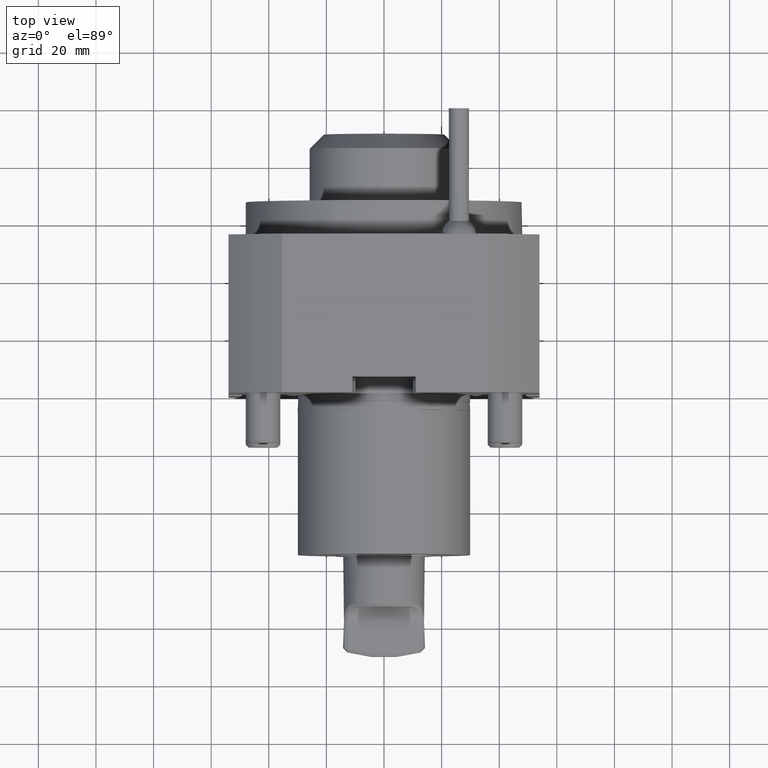
[diagram: clean part render]
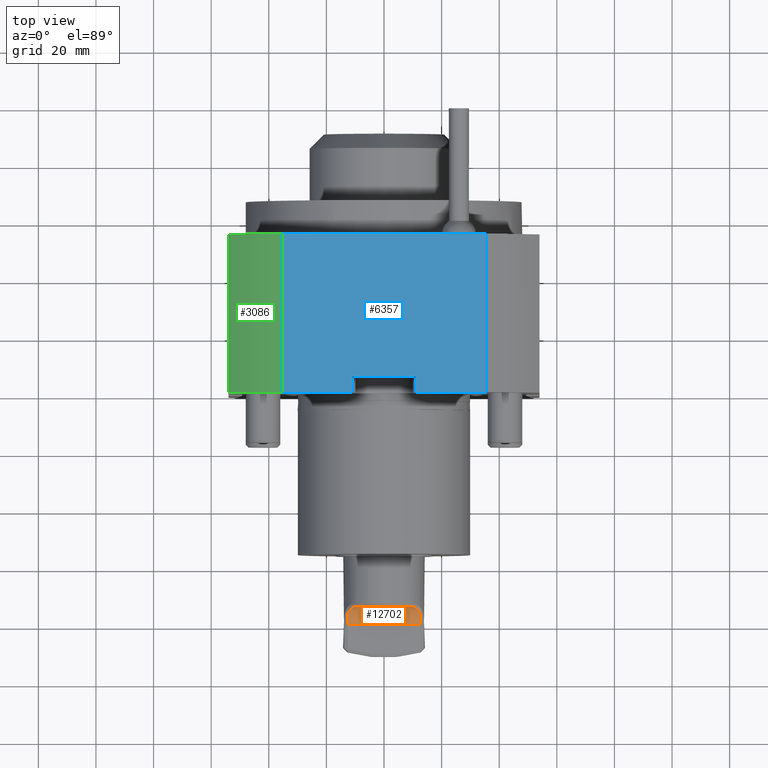
[diagram: same view with three faces highlighted in distinct colors, each labeled with its STEP entity id]
A machine part, top view with three faces highlighted in distinct colors.
Their STEP definitions:

[orange] entity #12702 — the highlighted cylindrical surface (edge-blend (fillet) strip) has radius 6 mm, axis along (1, -0, 0).
#1038 = EDGE_LOOP ( 'NONE', ( #12382, #10063, #18096, #12449, #9887, #19248 ) ) ;
#1158 = CARTESIAN_POINT ( 'NONE',  ( -12.55193161386064915, -77.34245224775885674, 4.224518817551202510 ) ) ;
#1326 = DIRECTION ( 'NONE',  ( 1.000000000000000000, -1.223592022496380568E-16, 3.729655473350134760E-16 ) ) ;
#1590 = CARTESIAN_POINT ( 'NONE',  ( 10.98713537160386622, -73.86943922113913175, 7.790744454398466523 ) ) ;
#1747 = CARTESIAN_POINT ( 'NONE',  ( -15.49388420157445445, -73.50000000000048317, 9.929999999999997939 ) ) ;
#1922 = EDGE_CURVE ( 'NONE', #17752, #14263, #19484, .T. ) ;
#2253 = CARTESIAN_POINT ( 'NONE',  ( -11.15148804464083021, -73.98240642639130726, 7.558386721260468732 ) ) ;
#2442 = CARTESIAN_POINT ( 'NONE',  ( -10.58040448906658249, -73.73150604598997404, 8.261201405944587961 ) ) ;
#2463 =( BOUNDED_CURVE ( )  B_SPLINE_CURVE ( 3, ( #7822, #2968, #19403, #15997 ),
 .UNSPECIFIED., .F., .T. ) 
 B_SPLINE_CURVE_WITH_KNOTS ( ( 4, 4 ),
 ( 2.598921649952495194, 3.141592653589793116 ),
 .UNSPECIFIED. ) 
 CURVE ( )  GEOMETRIC_REPRESENTATION_ITEM ( )  RATIONAL_B_SPLINE_CURVE ( ( 1.000000000000000000, 0.9756092111193656047, 0.9756092111193656047, 1.000000000000000000 ) ) 
 REPRESENTATION_ITEM ( '' )  );
#2749 = CARTESIAN_POINT ( 'NONE',  ( -12.50000000000001776, -78.40112428979475112, 3.929999999999997051 ) ) ;
#2968 = CARTESIAN_POINT ( 'NONE',  ( 12.55193161387448697, -77.34245224747444070, 4.224518817629822287 ) ) ;
#3187 = CARTESIAN_POINT ( 'NONE',  ( 12.65199488382238791, -76.40144941220842156, 4.792005813581045714 ) ) ;
#3392 = VECTOR ( 'NONE', #6174, 1000.000000000000000 ) ;
#3912 = CARTESIAN_POINT ( 'NONE',  ( -12.59399533819293104, -76.13644556352026882, 4.951820675888688683 ) ) ;
#4388 = CYLINDRICAL_SURFACE ( 'NONE', #6599, 6.000000000000004441 ) ;
#5365 = CARTESIAN_POINT ( 'NONE',  ( -11.63935332783834298, -74.34212888188564250, 6.851914114397522404 ) ) ;
#5474 = CARTESIAN_POINT ( 'NONE',  ( -11.91967944061357976, -74.65088729436402559, 6.385376866539509422 ) ) ;
#5675 = CARTESIAN_POINT ( 'NONE',  ( -12.65199488337118083, -76.40144941275414681, 4.792005813717241658 ) ) ;
#5688 = CARTESIAN_POINT ( 'NONE',  ( -12.04549493963296314, -74.82676599026582664, 6.155742851531686100 ) ) ;
#5957 = EDGE_CURVE ( 'NONE', #20341, #7899, #14166, .T. ) ;
#6169 = DIRECTION ( 'NONE',  ( 2.891205793294676354E-16, 0.000000000000000000, -1.000000000000000000 ) ) ;
#6174 = DIRECTION ( 'NONE',  ( 1.000000000000000000, -1.223592022496380568E-16, 3.729655473350134760E-16 ) ) ;
#6599 = AXIS2_PLACEMENT_3D ( 'NONE', #17435, #1326, #6169 ) ;
#6641 = CARTESIAN_POINT ( 'NONE',  ( 12.53634790550868772, -75.87305054434754936, 5.110665307041871053 ) ) ;
#7087 = CARTESIAN_POINT ( 'NONE',  ( -8.772548090492286121, -73.50000000000048317, 9.930000000000001492 ) ) ;
#7268 = CARTESIAN_POINT ( 'NONE',  ( -12.50000000000001776, -79.50000000000048317, 3.929999999999997051 ) ) ;
#7822 = CARTESIAN_POINT ( 'NONE',  ( 12.65199488382238791, -76.40144941220842156, 4.792005813581045714 ) ) ;
#7899 = VERTEX_POINT ( 'NONE', #13770 ) ;
#7980 = EDGE_CURVE ( 'NONE', #17752, #12398, #12887, .T. ) ;
#8037 = CARTESIAN_POINT ( 'NONE',  ( 9.739148830036603144, -73.53493346669228004, 9.140714371243516823 ) ) ;
#8575 = CARTESIAN_POINT ( 'NONE',  ( -9.735458662332455049, -73.53498407962835870, 9.143631829616941431 ) ) ;
#8992 = VECTOR ( 'NONE', #20592, 1000.000000000000000 ) ;
#9887 = ORIENTED_EDGE ( 'NONE', *, *, #14788, .T. ) ;
#10063 = ORIENTED_EDGE ( 'NONE', *, *, #19110, .T. ) ;
#10120 = EDGE_CURVE ( 'NONE', #14699, #7899, #2463, .T. ) ;
#10166 = CARTESIAN_POINT ( 'NONE',  ( -9.271514884620454922, -73.50000000000048317, 9.552170462726536471 ) ) ;
#11532 = CARTESIAN_POINT ( 'NONE',  ( 10.60242032487349917, -73.72092542021852069, 8.254503789358768273 ) ) ;
#11763 = CARTESIAN_POINT ( 'NONE',  ( -12.26477245822139572, -75.21262393665999468, 5.722561393911957950 ) ) ;
#11773 = CARTESIAN_POINT ( 'NONE',  ( 8.772548090492259476, -73.50000000000048317, 9.930000000000012150 ) ) ;
#12092 = CARTESIAN_POINT ( 'NONE',  ( -12.65199488337118083, -76.40144941275414681, 4.792005813717241658 ) ) ;
#12382 = ORIENTED_EDGE ( 'NONE', *, *, #10120, .F. ) ;
#12398 = VERTEX_POINT ( 'NONE', #11773 ) ;
#12449 = ORIENTED_EDGE ( 'NONE', *, *, #1922, .T. ) ;
#12702 = ADVANCED_FACE ( 'Defeature completata1_118', ( #19022 ), #4388, .F. ) ;
#12887 = LINE ( 'NONE', #1747, #3392 ) ;
#12935 = CARTESIAN_POINT ( 'NONE',  ( 11.93592935916167797, -74.63267350381387644, 6.372723432659078924 ) ) ;
#13582 = CARTESIAN_POINT ( 'NONE',  ( -8.772548090492286121, -73.50000000000048317, 9.930000000000001492 ) ) ;
#13770 = CARTESIAN_POINT ( 'NONE',  ( 12.49999999999999289, -79.50000000000048317, 3.930000000000008153 ) ) ;
#14166 = LINE ( 'NONE', #17197, #8992 ) ;
#14263 = VERTEX_POINT ( 'NONE', #16391 ) ;
#14699 = VERTEX_POINT ( 'NONE', #18796 ) ;
#14788 = EDGE_CURVE ( 'NONE', #14263, #20341, #16000, .T. ) ;
#15379 = CARTESIAN_POINT ( 'NONE',  ( -10.96966452293990990, -73.88732766394491591, 7.794977636404347265 ) ) ;
#15667 = CARTESIAN_POINT ( 'NONE',  ( -12.50000000000001776, -79.50000000000048317, 3.929999999999997051 ) ) ;
#15997 = CARTESIAN_POINT ( 'NONE',  ( 12.49999999999999289, -79.50000000000048317, 3.930000000000008153 ) ) ;
#16000 =( BOUNDED_CURVE ( )  B_SPLINE_CURVE ( 3, ( #5675, #1158, #2749, #7268 ),
 .UNSPECIFIED., .F., .T. ) 
 B_SPLINE_CURVE_WITH_KNOTS ( ( 4, 4 ),
 ( 2.598921650024906604, 3.141592653589793116 ),
 .UNSPECIFIED. ) 
 CURVE ( )  GEOMETRIC_REPRESENTATION_ITEM ( )  RATIONAL_B_SPLINE_CURVE ( ( 1.000000000000000000, 0.9756092111258347632, 0.9756092111258347632, 1.000000000000000000 ) ) 
 REPRESENTATION_ITEM ( '' )  );
#16103 = CARTESIAN_POINT ( 'NONE',  ( 12.37906444607998679, -75.41504722588582865, 5.496238094993653789 ) ) ;
#16198 = CARTESIAN_POINT ( 'NONE',  ( 11.66170388721455176, -74.33040822808776227, 6.838891802991809321 ) ) ;
#16391 = CARTESIAN_POINT ( 'NONE',  ( -12.65199488337118083, -76.40144941275414681, 4.792005813717241658 ) ) ;
#16419 = CARTESIAN_POINT ( 'NONE',  ( 8.772548090492259476, -73.50000000000048317, 9.930000000000012150 ) ) ;
#16635 = CARTESIAN_POINT ( 'NONE',  ( -12.35955849858286015, -75.42391582076386669, 5.516852063641718651 ) ) ;
#16843 = CARTESIAN_POINT ( 'NONE',  ( -10.37609877321256668, -73.67175370399083079, 8.487262126902198389 ) ) ;
#16945 = CARTESIAN_POINT ( 'NONE',  ( -12.52416858226861684, -75.88535475117581086, 5.131596445737891976 ) ) ;
#17197 = CARTESIAN_POINT ( 'NONE',  ( -15.49388420157445267, -79.50000000000048317, 3.929999999999997051 ) ) ;
#17435 = CARTESIAN_POINT ( 'NONE',  ( -15.49388420157445623, -79.50000000000048317, 9.929999999999997939 ) ) ;
#17752 = VERTEX_POINT ( 'NONE', #7087 ) ;
#18096 = ORIENTED_EDGE ( 'NONE', *, *, #7980, .F. ) ;
#18796 = CARTESIAN_POINT ( 'NONE',  ( 12.65199488382238791, -76.40144941220842156, 4.792005813581045714 ) ) ;
#19022 = FACE_OUTER_BOUND ( 'NONE', #1038, .T. ) ;
#19110 = EDGE_CURVE ( 'NONE', #14699, #12398, #20664, .T. ) ;
#19248 = ORIENTED_EDGE ( 'NONE', *, *, #5957, .T. ) ;
#19395 = CARTESIAN_POINT ( 'NONE',  ( 9.271373646339185370, -73.50000000000049738, 9.552277411716170619 ) ) ;
#19403 = CARTESIAN_POINT ( 'NONE',  ( 12.49999999999999467, -78.40112428964445712, 3.930000000000003713 ) ) ;
#19484 = B_SPLINE_CURVE_WITH_KNOTS ( 'NONE', 3,
 ( #13582, #10166, #8575, #16843, #2442, #15379, #2253, #19920, #5365, #5474, #5688, #11763, #16635, #16945, #3912, #12092 ),
 .UNSPECIFIED., .F., .F.,
 ( 4, 2, 2, 2, 2, 2, 2, 4 ),
 ( 0.000000000000000000, 0.001852649545640797351, 0.002778974318461191039, 0.003705299091281584727, 0.004631623864101977982, 0.005557948636922372537, 0.006484273409742765358, 0.007410598182563159914 ),
 .UNSPECIFIED. ) ;
#19920 = CARTESIAN_POINT ( 'NONE',  ( -11.48595134253924854, -74.20967289027801428, 7.087320373386654104 ) ) ;
#20341 = VERTEX_POINT ( 'NONE', #15667 ) ;
#20592 = DIRECTION ( 'NONE',  ( 1.000000000000000000, -1.223592022496380568E-16, 3.729655473350134760E-16 ) ) ;
#20664 = B_SPLINE_CURVE_WITH_KNOTS ( 'NONE', 3,
 ( #3187, #6641, #16103, #12935, #16198, #1590, #11532, #8037, #19395, #16419 ),
 .UNSPECIFIED., .F., .F.,
 ( 4, 2, 2, 2, 4 ),
 ( 2.800139636520998741E-13, 0.001856752242151924305, 0.003713504484023834751, 0.005570256725895745414, 0.007427008967767655644 ),
 .UNSPECIFIED. ) ;

[blue] entity #6357 — the highlighted planar face has unit normal (-0, 0, -1).
#152 = CARTESIAN_POINT ( 'NONE',  ( 11.00000000005704770, 5.499999999999998224, 64.99999999999997158 ) ) ;
#234 = AXIS2_PLACEMENT_3D ( 'NONE', #19374, #3373, #13130 ) ;
#545 = LINE ( 'NONE', #18305, #11173 ) ;
#854 = EDGE_CURVE ( 'NONE', #12247, #2597, #7489, .T. ) ;
#878 = VECTOR ( 'NONE', #9329, 1000.000000000000000 ) ;
#1133 = CARTESIAN_POINT ( 'NONE',  ( -35.36947836765479281, 6.938893903907228378E-15, 64.99999999999997158 ) ) ;
#1148 = EDGE_CURVE ( 'NONE', #7928, #18301, #12522, .T. ) ;
#1225 = EDGE_LOOP ( 'NONE', ( #17869, #9569, #9801, #12214, #14738, #2050, #4871, #20621 ) ) ;
#1775 = FACE_OUTER_BOUND ( 'NONE', #1225, .T. ) ;
#1971 = CARTESIAN_POINT ( 'NONE',  ( -35.36947836765479281, 54.99999999999998579, 64.99999999999997158 ) ) ;
#2050 = ORIENTED_EDGE ( 'NONE', *, *, #854, .T. ) ;
#2094 = LINE ( 'NONE', #13535, #20703 ) ;
#2384 = VERTEX_POINT ( 'NONE', #5340 ) ;
#2597 = VERTEX_POINT ( 'NONE', #1971 ) ;
#2774 = LINE ( 'NONE', #19291, #878 ) ;
#3159 = VECTOR ( 'NONE', #16067, 1000.000000000000000 ) ;
#3373 = DIRECTION ( 'NONE',  ( -0.000000000000000000, 0.000000000000000000, -1.000000000000000000 ) ) ;
#3465 = EDGE_CURVE ( 'NONE', #7928, #2597, #11894, .T. ) ;
#3705 = EDGE_CURVE ( 'NONE', #12247, #2384, #7149, .T. ) ;
#4045 = LINE ( 'NONE', #16983, #20500 ) ;
#4107 = CARTESIAN_POINT ( 'NONE',  ( 44.00000000000000000, 54.99999999999998579, 64.99999999999997158 ) ) ;
#4721 = CARTESIAN_POINT ( 'NONE',  ( -11.00000000000123812, 5.499999999999998224, 64.99999999999997158 ) ) ;
#4871 = ORIENTED_EDGE ( 'NONE', *, *, #3465, .F. ) ;
#5340 = CARTESIAN_POINT ( 'NONE',  ( 35.36947836765479281, -2.081668171172168513E-14, 64.99999999999997158 ) ) ;
#5923 = EDGE_CURVE ( 'NONE', #12862, #2384, #4045, .T. ) ;
#6357 = ADVANCED_FACE ( 'Defeature completata1_2', ( #1775 ), #17773, .F. ) ;
#6775 = DIRECTION ( 'NONE',  ( 1.224646799147353207E-16, 1.000000000000000000, 0.000000000000000000 ) ) ;
#7149 = LINE ( 'NONE', #20117, #3159 ) ;
#7162 = VECTOR ( 'NONE', #6775, 1000.000000000000000 ) ;
#7280 = DIRECTION ( 'NONE',  ( -1.000000000000000000, 1.224646799147353207E-16, 0.000000000000000000 ) ) ;
#7321 = CARTESIAN_POINT ( 'NONE',  ( 11.00000000005704770, 0.000000000000000000, 64.99999999999997158 ) ) ;
#7489 = LINE ( 'NONE', #4107, #14675 ) ;
#7928 = VERTEX_POINT ( 'NONE', #1133 ) ;
#8759 = DIRECTION ( 'NONE',  ( 1.224646799147353207E-16, 1.000000000000000000, 0.000000000000000000 ) ) ;
#9329 = DIRECTION ( 'NONE',  ( -1.000000000000000000, 1.224646799147353207E-16, 0.000000000000000000 ) ) ;
#9569 = ORIENTED_EDGE ( 'NONE', *, *, #11865, .F. ) ;
#9801 = ORIENTED_EDGE ( 'NONE', *, *, #20212, .F. ) ;
#10837 = CARTESIAN_POINT ( 'NONE',  ( 35.36947836765479991, 54.99999999999998579, 64.99999999999997158 ) ) ;
#11173 = VECTOR ( 'NONE', #8759, 1000.000000000000000 ) ;
#11354 = CARTESIAN_POINT ( 'NONE',  ( -11.00000000000123812, 0.000000000000000000, 64.99999999999997158 ) ) ;
#11711 = VERTEX_POINT ( 'NONE', #152 ) ;
#11817 = DIRECTION ( 'NONE',  ( 1.224646799147353207E-16, 1.000000000000000000, 0.000000000000000000 ) ) ;
#11865 = EDGE_CURVE ( 'NONE', #11711, #15802, #2774, .T. ) ;
#11894 = LINE ( 'NONE', #18357, #7162 ) ;
#12214 = ORIENTED_EDGE ( 'NONE', *, *, #5923, .T. ) ;
#12247 = VERTEX_POINT ( 'NONE', #10837 ) ;
#12522 = LINE ( 'NONE', #17186, #13342 ) ;
#12862 = VERTEX_POINT ( 'NONE', #7321 ) ;
#13130 = DIRECTION ( 'NONE',  ( -1.224646799147353207E-16, -1.000000000000000000, 0.000000000000000000 ) ) ;
#13342 = VECTOR ( 'NONE', #15408, 1000.000000000000000 ) ;
#13535 = CARTESIAN_POINT ( 'NONE',  ( -11.00000000000123812, -1.387778780781445676E-14, 64.99999999999997158 ) ) ;
#14393 = EDGE_CURVE ( 'NONE', #18301, #15802, #2094, .T. ) ;
#14675 = VECTOR ( 'NONE', #7280, 1000.000000000000000 ) ;
#14738 = ORIENTED_EDGE ( 'NONE', *, *, #3705, .F. ) ;
#15408 = DIRECTION ( 'NONE',  ( 1.000000000000000000, -1.224646799147353207E-16, 0.000000000000000000 ) ) ;
#15621 = DIRECTION ( 'NONE',  ( 1.000000000000000000, -1.224646799147353207E-16, 0.000000000000000000 ) ) ;
#15802 = VERTEX_POINT ( 'NONE', #4721 ) ;
#16067 = DIRECTION ( 'NONE',  ( -1.224646799147353207E-16, -1.000000000000000000, -0.000000000000000000 ) ) ;
#16983 = CARTESIAN_POINT ( 'NONE',  ( 1.540743955509788682E-30, 0.000000000000000000, 64.99999999999997158 ) ) ;
#17186 = CARTESIAN_POINT ( 'NONE',  ( 1.540743955509788682E-30, 0.000000000000000000, 64.99999999999997158 ) ) ;
#17773 = PLANE ( 'NONE',  #234 ) ;
#17869 = ORIENTED_EDGE ( 'NONE', *, *, #14393, .T. ) ;
#18301 = VERTEX_POINT ( 'NONE', #11354 ) ;
#18305 = CARTESIAN_POINT ( 'NONE',  ( 11.00000000005704770, -1.387778780781445676E-14, 64.99999999999997158 ) ) ;
#18357 = CARTESIAN_POINT ( 'NONE',  ( -35.36947836765479991, -42.99999999999987210, 64.99999999999997158 ) ) ;
#19291 = CARTESIAN_POINT ( 'NONE',  ( 43.99999999999999289, 5.499999999999991118, 64.99999999999997158 ) ) ;
#19374 = CARTESIAN_POINT ( 'NONE',  ( 43.99999999999999289, -2.081668171172168513E-14, 64.99999999999997158 ) ) ;
#20117 = CARTESIAN_POINT ( 'NONE',  ( 35.36947836765478570, -42.99999999999988631, 64.99999999999997158 ) ) ;
#20212 = EDGE_CURVE ( 'NONE', #12862, #11711, #545, .T. ) ;
#20500 = VECTOR ( 'NONE', #15621, 1000.000000000000000 ) ;
#20621 = ORIENTED_EDGE ( 'NONE', *, *, #1148, .T. ) ;
#20703 = VECTOR ( 'NONE', #11817, 1000.000000000000000 ) ;

[green] entity #3086 — the highlighted cylindrical surface (partial cylindrical patch) has radius 74 mm, axis along (-0, -1, -0).
#18 = VERTEX_POINT ( 'NONE', #10308 ) ;
#644 = DIRECTION ( 'NONE',  ( -1.224646799147353207E-16, -1.000000000000000000, -0.000000000000000000 ) ) ;
#1133 = CARTESIAN_POINT ( 'NONE',  ( -35.36947836765479281, 6.938893903907228378E-15, 64.99999999999997158 ) ) ;
#1517 = CIRCLE ( 'NONE', #20804, 73.99999999999998579 ) ;
#1969 = DIRECTION ( 'NONE',  ( 0.000000000000000000, 0.000000000000000000, 1.000000000000000000 ) ) ;
#1971 = CARTESIAN_POINT ( 'NONE',  ( -35.36947836765479281, 54.99999999999998579, 64.99999999999997158 ) ) ;
#2551 = CYLINDRICAL_SURFACE ( 'NONE', #5455, 73.99999999999998579 ) ;
#2597 = VERTEX_POINT ( 'NONE', #1971 ) ;
#3042 = DIRECTION ( 'NONE',  ( -1.224646799147353207E-16, -1.000000000000000000, -0.000000000000000000 ) ) ;
#3080 = CARTESIAN_POINT ( 'NONE',  ( -54.00000000000000711, -6.938893903907228378E-15, 50.59644256269403684 ) ) ;
#3086 = ADVANCED_FACE ( 'Defeature completata1_8', ( #12068 ), #2551, .T. ) ;
#3465 = EDGE_CURVE ( 'NONE', #7928, #2597, #11894, .T. ) ;
#3679 = CARTESIAN_POINT ( 'NONE',  ( -5.265981236333602693E-15, -42.99999999999987921, 0.000000000000000000 ) ) ;
#4088 = DIRECTION ( 'NONE',  ( 0.000000000000000000, 0.000000000000000000, 1.000000000000000000 ) ) ;
#4536 = VERTEX_POINT ( 'NONE', #3080 ) ;
#4705 = ORIENTED_EDGE ( 'NONE', *, *, #3465, .T. ) ;
#5333 = EDGE_CURVE ( 'NONE', #7928, #4536, #1517, .T. ) ;
#5455 = AXIS2_PLACEMENT_3D ( 'NONE', #3679, #644, #4088 ) ;
#5505 = VECTOR ( 'NONE', #18655, 1000.000000000000000 ) ;
#6019 = ORIENTED_EDGE ( 'NONE', *, *, #18519, .T. ) ;
#6412 = CARTESIAN_POINT ( 'NONE',  ( 6.735557395310443404E-15, 54.99999999999998579, 0.000000000000000000 ) ) ;
#6775 = DIRECTION ( 'NONE',  ( 1.224646799147353207E-16, 1.000000000000000000, 0.000000000000000000 ) ) ;
#7162 = VECTOR ( 'NONE', #6775, 1000.000000000000000 ) ;
#7681 = ORIENTED_EDGE ( 'NONE', *, *, #5333, .F. ) ;
#7928 = VERTEX_POINT ( 'NONE', #1133 ) ;
#9484 = CIRCLE ( 'NONE', #12527, 74.00000000000000000 ) ;
#10308 = CARTESIAN_POINT ( 'NONE',  ( -54.00000000000000000, 54.99999999999998579, 50.59644256269403684 ) ) ;
#11492 = CARTESIAN_POINT ( 'NONE',  ( 1.540743955509788682E-30, 0.000000000000000000, 0.000000000000000000 ) ) ;
#11894 = LINE ( 'NONE', #18357, #7162 ) ;
#12068 = FACE_OUTER_BOUND ( 'NONE', #17882, .T. ) ;
#12142 = ORIENTED_EDGE ( 'NONE', *, *, #15880, .T. ) ;
#12527 = AXIS2_PLACEMENT_3D ( 'NONE', #6412, #3042, #15966 ) ;
#14029 = LINE ( 'NONE', #18540, #5505 ) ;
#15880 = EDGE_CURVE ( 'NONE', #2597, #18, #9484, .T. ) ;
#15966 = DIRECTION ( 'NONE',  ( 0.000000000000000000, 0.000000000000000000, 1.000000000000000000 ) ) ;
#16481 = DIRECTION ( 'NONE',  ( -1.224646799147353207E-16, -1.000000000000000000, -0.000000000000000000 ) ) ;
#17882 = EDGE_LOOP ( 'NONE', ( #4705, #12142, #6019, #7681 ) ) ;
#18357 = CARTESIAN_POINT ( 'NONE',  ( -35.36947836765479991, -42.99999999999987210, 64.99999999999997158 ) ) ;
#18519 = EDGE_CURVE ( 'NONE', #18, #4536, #14029, .T. ) ;
#18540 = CARTESIAN_POINT ( 'NONE',  ( -54.00000000000001421, -42.99999999999987210, 50.59644256269403684 ) ) ;
#18655 = DIRECTION ( 'NONE',  ( -1.224646799147353207E-16, -1.000000000000000000, -0.000000000000000000 ) ) ;
#20804 = AXIS2_PLACEMENT_3D ( 'NONE', #11492, #16481, #1969 ) ;